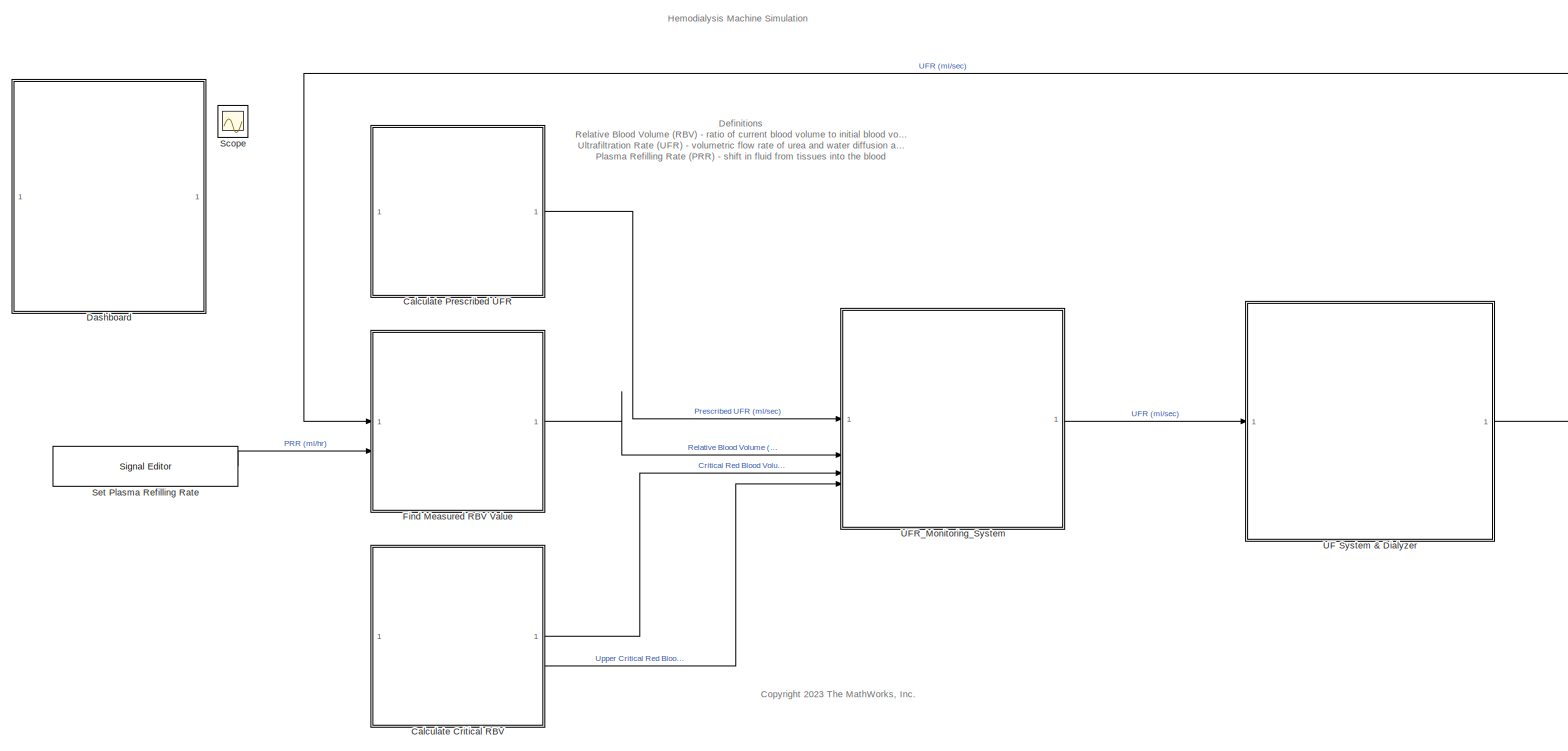
[diagram: root canvas - part 1/1, most of the canvas]
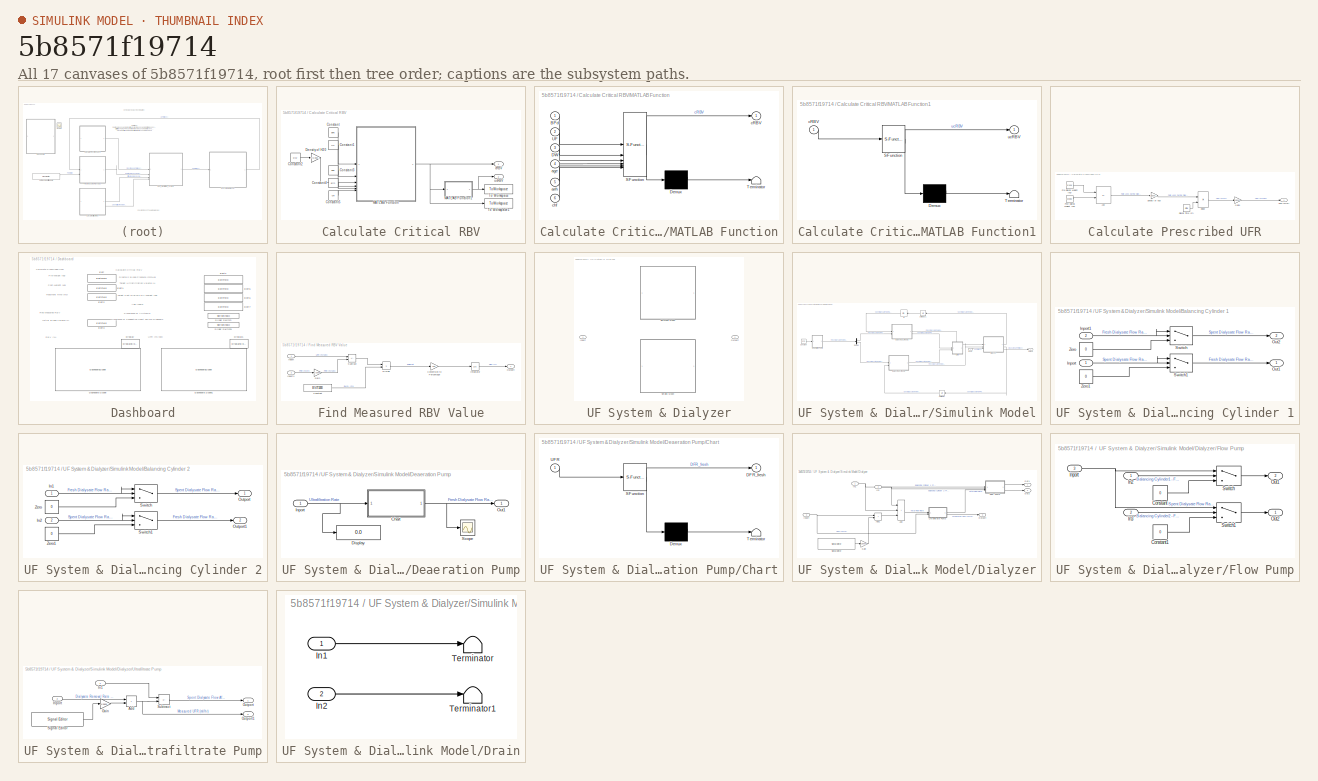
[diagram: thumbnail index - all 17 canvases of the model, root first then tree order]
MODEL slx_5b8571f19714
KIND model
CONFIG AbsTol = auto
CONFIG EnableMultiTasking = off
CONFIG FixedStep = auto
CONFIG MaxStep = auto
CONFIG MinStep = auto
CONFIG RelTol = 1e-3
CONFIG SampleTimeConstraint = Unconstrained
CONFIG SolverName = VariableStepAuto
CONFIG StartTime = 0.0
CONFIG StopTime = 3600*4
BLOCK [SubSystem] Calculate Critical RBV
BLOCK [Constant] Calculate Critical RBV/Constant
  Value = BPd
BLOCK [Constant] Calculate Critical RBV/Constant1
  Value = UF
BLOCK [Constant] Calculate Critical RBV/Constant2
  Value = DW
BLOCK [Constant] Calculate Critical RBV/Constant3
  Value = age
BLOCK [Constant] Calculate Critical RBV/Constant4
  Value = arrh
BLOCK [Constant] Calculate Critical RBV/Constant5
  Value = chf
BLOCK [Gain] Calculate Critical RBV/Density of H20
  Gain = 1/0.000997
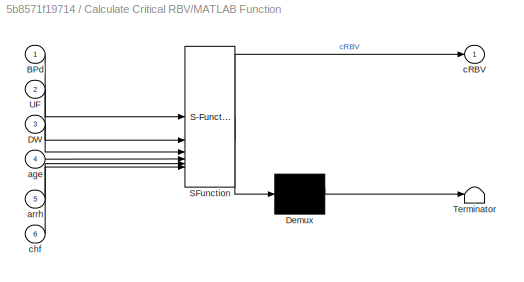
BLOCK [SubSystem] Calculate Critical RBV/MATLAB Function
  ErrorFcn = Stateflow.Translate.translate
  PermitHierarchicalResolution = ExplicitOnly
  SFBlockType = MATLAB Function
  TreatAsAtomicUnit = on
BLOCK [Demux] Calculate Critical RBV/MATLAB Function/ Demux 
  Outputs = 1
BLOCK [S-Function] Calculate Critical RBV/MATLAB Function/ SFunction 
  EnableBusSupport = on
  FunctionName = sf_sfun
  PortCounts = [6 2]
  SFcnIsStateOwnerBlock = off
  SFunctionDeploymentMode = off
  Tag = Stateflow S-Function 3
BLOCK [Terminator] Calculate Critical RBV/MATLAB Function/ Terminator 
BLOCK [Inport] Calculate Critical RBV/MATLAB Function/BPd
BLOCK [Inport] Calculate Critical RBV/MATLAB Function/DW
  Port = 3
BLOCK [Inport] Calculate Critical RBV/MATLAB Function/UF
  Port = 2
BLOCK [Inport] Calculate Critical RBV/MATLAB Function/age
  Port = 4
BLOCK [Inport] Calculate Critical RBV/MATLAB Function/arrh
  Port = 5
BLOCK [Outport] Calculate Critical RBV/MATLAB Function/cRBV
BLOCK [Inport] Calculate Critical RBV/MATLAB Function/chf
  Port = 6
BLOCK [SubSystem] Calculate Critical RBV/MATLAB Function1
  ErrorFcn = Stateflow.Translate.translate
  PermitHierarchicalResolution = ExplicitOnly
  SFBlockType = MATLAB Function
  TreatAsAtomicUnit = on
BLOCK [Demux] Calculate Critical RBV/MATLAB Function1/ Demux 
  Outputs = 1
BLOCK [S-Function] Calculate Critical RBV/MATLAB Function1/ SFunction 
  EnableBusSupport = on
  FunctionName = sf_sfun
  PortCounts = [1 2]
  SFcnIsStateOwnerBlock = off
  SFunctionDeploymentMode = off
  Tag = Stateflow S-Function 6
BLOCK [Terminator] Calculate Critical RBV/MATLAB Function1/ Terminator 
BLOCK [Inport] Calculate Critical RBV/MATLAB Function1/cRBV
BLOCK [Outport] Calculate Critical RBV/MATLAB Function1/ucRBV
BLOCK [ToWorkspace] Calculate Critical RBV/To Workspace
  FixptAsFi = on
  MaxDataPoints = inf
  SampleTime = -1
  VariableName = ucRBV
BLOCK [ToWorkspace] Calculate Critical RBV/To Workspace1
  FixptAsFi = on
  MaxDataPoints = inf
  SampleTime = -1
  VariableName = cRBV
BLOCK [Outport] Calculate Critical RBV/cRBV
BLOCK [Outport] Calculate Critical RBV/ucRBV
  Port = 2
BLOCK [SubSystem] Calculate Prescribed UFR
BLOCK [Sum] Calculate Prescribed UFR/Add
  IconShape = rectangular
  Inputs = +-
BLOCK [Gain] Calculate Prescribed UFR/Density of H20
  Gain = 1/0.000997
BLOCK [Constant] Calculate Prescribed UFR/Dialysis Time (hr)
  Value = dtime
BLOCK [Product] Calculate Prescribed UFR/Divide
  Inputs = */
BLOCK [Gain] Calculate Prescribed UFR/Gain1
  Gain = 1/3600
BLOCK [Constant] Calculate Prescribed UFR/Post-Dialysis Weight (kg)
  Value = postdw
BLOCK [Constant] Calculate Prescribed UFR/Pre-Dialysis Weight (kg)
  Value = predw
BLOCK [Outport] Calculate Prescribed UFR/UFR (ml//hr)
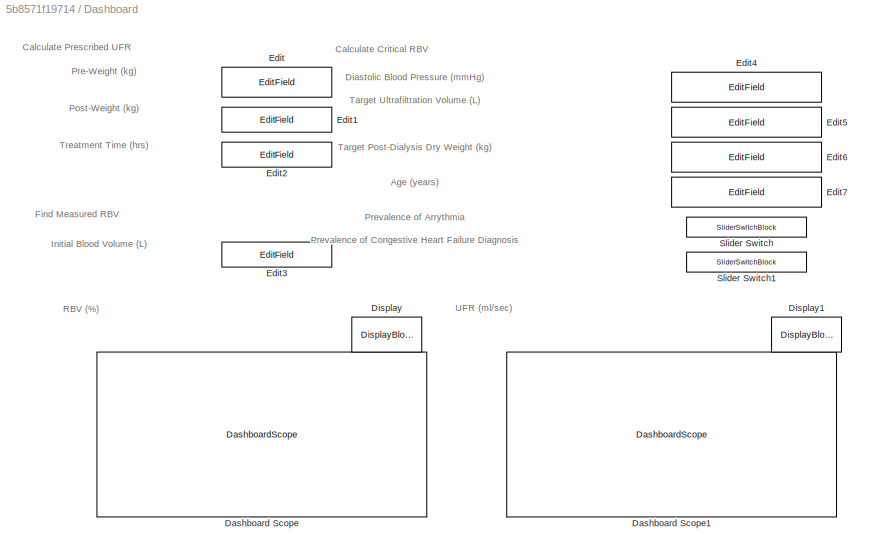
BLOCK [SubSystem] Dashboard
BLOCK [DashboardScope] Dashboard/Dashboard Scope
BLOCK [DashboardScope] Dashboard/Dashboard Scope1
BLOCK [DisplayBlock] Dashboard/Display
  Format = Custom
  FormatString = %.2f
  LabelPosition = Hide
  Layout = Fill available space
  Transparency = 1
BLOCK [DisplayBlock] Dashboard/Display1
  Format = Custom
  FormatString = %.2f
  LabelPosition = Hide
  Transparency = 1
BLOCK [EditField] Dashboard/Edit
  Alignment = Center
  LabelPosition = Hide
  ShowInitialText = on
BLOCK [EditField] Dashboard/Edit1
  Alignment = Center
  LabelPosition = Hide
  ShowInitialText = on
BLOCK [EditField] Dashboard/Edit2
  Alignment = Center
  LabelPosition = Hide
  ShowInitialText = on
BLOCK [EditField] Dashboard/Edit3
  Alignment = Center
  LabelPosition = Hide
  ShowInitialText = on
BLOCK [EditField] Dashboard/Edit4
  Alignment = Center
  LabelPosition = Hide
  ShowInitialText = on
BLOCK [EditField] Dashboard/Edit5
  Alignment = Center
  LabelPosition = Hide
  ShowInitialText = on
BLOCK [EditField] Dashboard/Edit6
  Alignment = Center
  LabelPosition = Hide
  ShowInitialText = on
BLOCK [EditField] Dashboard/Edit7
  Alignment = Center
  LabelPosition = Hide
  ShowInitialText = on
BLOCK [SliderSwitchBlock] Dashboard/Slider Switch
  LabelPosition = Hide
BLOCK [SliderSwitchBlock] Dashboard/Slider Switch1
  LabelPosition = Hide
BLOCK [SubSystem] Find Measured RBV Value
BLOCK [Constant] Find Measured RBV Value/Constant
  Value = BV0*1000
BLOCK [Gain] Find Measured RBV Value/Conversion to Percentage
  Gain = 100
BLOCK [Product] Find Measured RBV Value/Divide
  Inputs = */
BLOCK [Gain] Find Measured RBV Value/Gain
  Gain = 1/3600
BLOCK [Inport] Find Measured RBV Value/Inport
BLOCK [Inport] Find Measured RBV Value/Inport1
  Port = 2
BLOCK [Integrator] Find Measured RBV Value/Integrator
  InitialCondition = 100
BLOCK [Outport] Find Measured RBV Value/Outport
BLOCK [Sum] Find Measured RBV Value/Subtract
  IconShape = rectangular
  Inputs = -+
BLOCK [Scope] Scope
  Floating = off
  IOType = viewer
  NumInputPorts = 1
  ScopeSpecificationString = Simulink.scopes.TimeScopeBlockCfg('CurrentConfiguration', extmgr.ConfigurationSet(extmgr.Configuration('Core','General UI',true),extmgr.Configuration('Core','Source UI',true),extmgr.Configuration('Sources','WiredSimulink',true,'DataLoggingVariableName','ScopeData1'),extmgr.Configuration('Visuals','Time Domain',true,'SerializedDisplays',{struct('MinYLimReal','96.50024','MaxYLimReal','100.38886','YL...<+2099ch>
BLOCK [Reference] Set Plasma Refilling Rate   REF=SignalEditorBlockLib/Signal Editor
  SourceBlock = SignalEditorBlockLib/Signal Editor
  SourceType = SignalEditor
  UserDataPersistent = on
BLOCK [SubSystem] UF System & Dialyzer
  AttributesFormatString = %<LabelModeActiveChoice>
  LabelModeActiveChoice = Simulink
  Variant = on
  VariantControl = Choice
  VariantControlMode = label
BLOCK [Inport] UF System & Dialyzer/Inport
BLOCK [Outport] UF System & Dialyzer/Outport
BLOCK [SubSystem] UF System & Dialyzer/Simscape Model
  DFR = 30000
  ReferencedSubsystem = Simscape_UF_Model
  VariantControl = Simscape
BLOCK [SubSystem] UF System & Dialyzer/Simulink Model
  VariantControl = Simulink
BLOCK [SubSystem] UF System & Dialyzer/Simulink Model/Balancing Cylinder 1
BLOCK [Inport] UF System & Dialyzer/Simulink Model/Balancing Cylinder 1/Inport
BLOCK [Inport] UF System & Dialyzer/Simulink Model/Balancing Cylinder 1/Inport1
  Port = 2
BLOCK [Outport] UF System & Dialyzer/Simulink Model/Balancing Cylinder 1/Out1
BLOCK [Outport] UF System & Dialyzer/Simulink Model/Balancing Cylinder 1/Out2
  Port = 2
BLOCK [Switch] UF System & Dialyzer/Simulink Model/Balancing Cylinder 1/Switch
  Criteria = u2 > Threshold
  InputSameDT = off
  SaturateOnIntegerOverflow = off
BLOCK [Switch] UF System & Dialyzer/Simulink Model/Balancing Cylinder 1/Switch1
  Criteria = u2 > Threshold
  InputSameDT = off
  SaturateOnIntegerOverflow = off
BLOCK [Constant] UF System & Dialyzer/Simulink Model/Balancing Cylinder 1/Zero
  OutDataTypeStr = Inherit: Inherit via back propagation
  Value = 0
BLOCK [Constant] UF System & Dialyzer/Simulink Model/Balancing Cylinder 1/Zero1
  OutDataTypeStr = Inherit: Inherit via back propagation
  Value = 0
BLOCK [SubSystem] UF System & Dialyzer/Simulink Model/Balancing Cylinder 2
BLOCK [Inport] UF System & Dialyzer/Simulink Model/Balancing Cylinder 2/In1
BLOCK [Inport] UF System & Dialyzer/Simulink Model/Balancing Cylinder 2/In2
  Port = 2
BLOCK [Outport] UF System & Dialyzer/Simulink Model/Balancing Cylinder 2/Outport
BLOCK [Outport] UF System & Dialyzer/Simulink Model/Balancing Cylinder 2/Outport1
  Port = 2
BLOCK [Switch] UF System & Dialyzer/Simulink Model/Balancing Cylinder 2/Switch
  Criteria = u2 > Threshold
  InputSameDT = off
  SaturateOnIntegerOverflow = off
BLOCK [Switch] UF System & Dialyzer/Simulink Model/Balancing Cylinder 2/Switch1
  Criteria = u2 > Threshold
  InputSameDT = off
  SaturateOnIntegerOverflow = off
BLOCK [Constant] UF System & Dialyzer/Simulink Model/Balancing Cylinder 2/Zero
  OutDataTypeStr = Inherit: Inherit via back propagation
  Value = 0
BLOCK [Constant] UF System & Dialyzer/Simulink Model/Balancing Cylinder 2/Zero1
  OutDataTypeStr = Inherit: Inherit via back propagation
  Value = 0
BLOCK [Constant] UF System & Dialyzer/Simulink Model/Constant
  Value = DFR
BLOCK [SubSystem] UF System & Dialyzer/Simulink Model/Deaeration Pump
BLOCK [SubSystem] UF System & Dialyzer/Simulink Model/Deaeration Pump/Chart
  ErrorFcn = Stateflow.Translate.translate
  PermitHierarchicalResolution = ExplicitOnly
  SFBlockType = Chart
  TreatAsAtomicUnit = on
BLOCK [Demux] UF System & Dialyzer/Simulink Model/Deaeration Pump/Chart/ Demux 
  Outputs = 1
BLOCK [S-Function] UF System & Dialyzer/Simulink Model/Deaeration Pump/Chart/ SFunction 
  EnableBusSupport = on
  FunctionName = sf_sfun
  PortCounts = [1 2]
  SFcnIsStateOwnerBlock = off
  SFunctionDeploymentMode = off
  Tag = Stateflow S-Function 5
BLOCK [Terminator] UF System & Dialyzer/Simulink Model/Deaeration Pump/Chart/ Terminator 
BLOCK [Outport] UF System & Dialyzer/Simulink Model/Deaeration Pump/Chart/DFR_fresh
BLOCK [Inport] UF System & Dialyzer/Simulink Model/Deaeration Pump/Chart/UFR
BLOCK [Display] UF System & Dialyzer/Simulink Model/Deaeration Pump/Display
  Decimation = 1
BLOCK [Inport] UF System & Dialyzer/Simulink Model/Deaeration Pump/Inport
BLOCK [Outport] UF System & Dialyzer/Simulink Model/Deaeration Pump/Out1
BLOCK [Scope] UF System & Dialyzer/Simulink Model/Deaeration Pump/Scope
  Floating = off
  NumInputPorts = 1
  ScopeSpecificationString = Simulink.scopes.TimeScopeBlockCfg('CurrentConfiguration', extmgr.ConfigurationSet(extmgr.Configuration('Core','General UI',true),extmgr.Configuration('Core','Source UI',true),extmgr.Configuration('Sources','WiredSimulink',true),extmgr.Configuration('Visuals','Time Domain',true,'SerializedDisplays',{struct('MinYLimReal','-3750.00000','MaxYLimReal','33750.00000','YLabelReal','','MinYLimMag','  0.000...<+1462ch>
BLOCK [Demux] UF System & Dialyzer/Simulink Model/Demux
  Outputs = 2
BLOCK [SubSystem] UF System & Dialyzer/Simulink Model/Dialyzer
BLOCK [Sum] UF System & Dialyzer/Simulink Model/Dialyzer/Add
  IconShape = rectangular
  Inputs = +++
BLOCK [Sum] UF System & Dialyzer/Simulink Model/Dialyzer/Add1
  IconShape = rectangular
BLOCK [SubSystem] UF System & Dialyzer/Simulink Model/Dialyzer/Flow Pump
BLOCK [Constant] UF System & Dialyzer/Simulink Model/Dialyzer/Flow Pump/Constant
  SampleTime = -1
  Value = 0
BLOCK [Constant] UF System & Dialyzer/Simulink Model/Dialyzer/Flow Pump/Constant1
  SampleTime = -1
  Value = 0
BLOCK [Inport] UF System & Dialyzer/Simulink Model/Dialyzer/Flow Pump/In2
BLOCK [Inport] UF System & Dialyzer/Simulink Model/Dialyzer/Flow Pump/In3
  Port = 2
BLOCK [Inport] UF System & Dialyzer/Simulink Model/Dialyzer/Flow Pump/Inport
  Port = 3
BLOCK [Outport] UF System & Dialyzer/Simulink Model/Dialyzer/Flow Pump/Out1
  Port = 2
BLOCK [Outport] UF System & Dialyzer/Simulink Model/Dialyzer/Flow Pump/Out2
BLOCK [Switch] UF System & Dialyzer/Simulink Model/Dialyzer/Flow Pump/Switch
  Criteria = u2 > Threshold
  InputSameDT = off
  SaturateOnIntegerOverflow = off
BLOCK [Switch] UF System & Dialyzer/Simulink Model/Dialyzer/Flow Pump/Switch1
  Criteria = u2 > Threshold
  InputSameDT = off
  SaturateOnIntegerOverflow = off
BLOCK [Gain] UF System & Dialyzer/Simulink Model/Dialyzer/Gain
  Gain = 1/3600
BLOCK [Inport] UF System & Dialyzer/Simulink Model/Dialyzer/In1
BLOCK [Inport] UF System & Dialyzer/Simulink Model/Dialyzer/In2
  Port = 2
BLOCK [Inport] UF System & Dialyzer/Simulink Model/Dialyzer/Inport
  Port = 3
BLOCK [Outport] UF System & Dialyzer/Simulink Model/Dialyzer/Out1
BLOCK [Outport] UF System & Dialyzer/Simulink Model/Dialyzer/Out2
  Port = 2
BLOCK [Outport] UF System & Dialyzer/Simulink Model/Dialyzer/Outport
  Port = 3
BLOCK [Reference] UF System & Dialyzer/Simulink Model/Dialyzer/Signal Editor  REF=SignalEditorBlockLib/Signal Editor
  SourceBlock = SignalEditorBlockLib/Signal Editor
  SourceType = SignalEditor
  UserDataPersistent = on
BLOCK [SubSystem] UF System & Dialyzer/Simulink Model/Dialyzer/Ultrafiltrate Pump
BLOCK [Sum] UF System & Dialyzer/Simulink Model/Dialyzer/Ultrafiltrate Pump/Add
  IconShape = rectangular
BLOCK [Gain] UF System & Dialyzer/Simulink Model/Dialyzer/Ultrafiltrate Pump/Gain
  Gain = 1/3600
BLOCK [Inport] UF System & Dialyzer/Simulink Model/Dialyzer/Ultrafiltrate Pump/In1
BLOCK [Inport] UF System & Dialyzer/Simulink Model/Dialyzer/Ultrafiltrate Pump/Inport
  Port = 2
BLOCK [Outport] UF System & Dialyzer/Simulink Model/Dialyzer/Ultrafiltrate Pump/Outport
BLOCK [Outport] UF System & Dialyzer/Simulink Model/Dialyzer/Ultrafiltrate Pump/Outport1
  Port = 2
BLOCK [Reference] UF System & Dialyzer/Simulink Model/Dialyzer/Ultrafiltrate Pump/Signal Editor  REF=SignalEditorBlockLib/Signal Editor
  SourceBlock = SignalEditorBlockLib/Signal Editor
  SourceType = SignalEditor
  UserDataPersistent = on
BLOCK [Sum] UF System & Dialyzer/Simulink Model/Dialyzer/Ultrafiltrate Pump/Subtract
  IconShape = rectangular
  Inputs = +-
BLOCK [SubSystem] UF System & Dialyzer/Simulink Model/Drain
BLOCK [Inport] UF System & Dialyzer/Simulink Model/Drain/In1
BLOCK [Inport] UF System & Dialyzer/Simulink Model/Drain/In2
  Port = 2
BLOCK [Terminator] UF System & Dialyzer/Simulink Model/Drain/Terminator
BLOCK [Terminator] UF System & Dialyzer/Simulink Model/Drain/Terminator1
BLOCK [InitialCondition] UF System & Dialyzer/Simulink Model/IC
  NameLocation = top
  Value = DFR
BLOCK [Inport] UF System & Dialyzer/Simulink Model/Inport
BLOCK [Outport] UF System & Dialyzer/Simulink Model/Outport
BLOCK [UnitDelay] UF System & Dialyzer/Simulink Model/Unit Delay
  HasFrameUpgradeWarning = on
  NameLocation = top
  SampleTime = -1
BLOCK [UnitDelay] UF System & Dialyzer/Simulink Model/Unit Delay1
  HasFrameUpgradeWarning = on
  NameLocation = top
  SampleTime = -1
BLOCK [ModelReference] UFR_Monitoring_System
  ModelNameDialog = UFR_Monitoring_System
  ModelReferenceVersion = 3.74
ANNOTATION (root): Hemodialysis Machine Simulation
ANNOTATION (root): <copyright redacted>
ANNOTATION (root): Definitions Relative Blood Volume (RBV) - ratio of current blood volume to initial blood volume at start of dialysis Ultrafiltration Rate (UFR) - volumetric flow rate of urea and water diffusion across dialyzer Plasma Refilling Rate (PRR) - shift in fluid from tissues into the blood
ANNOTATION Dashboard: Age (years)
ANNOTATION Dashboard: Calculate Critical RBV
ANNOTATION Dashboard: Calculate Prescribed UFR
ANNOTATION Dashboard: Diastolic Blood Pressure (mmHg)
ANNOTATION Dashboard: Find Measured RBV
ANNOTATION Dashboard: Initial Blood Volume (L)
ANNOTATION Dashboard: Post-Weight (kg)
ANNOTATION Dashboard: Pre-Weight (kg)
ANNOTATION Dashboard: Prevalence of Arrythmia
ANNOTATION Dashboard: Prevalence of Congestive Heart Failure Diagnosis
ANNOTATION Dashboard: RBV (%)
ANNOTATION Dashboard: Target Post-Dialysis Dry Weight (kg)
ANNOTATION Dashboard: Target Ultrafiltration Volume (L)
ANNOTATION Dashboard: Treatment Time (hrs)
ANNOTATION Dashboard: UFR (ml/sec)
LINE Calculate Critical RBV/Constant1:1 -> Calculate Critical RBV/MATLAB Function:2
LINE Calculate Critical RBV/Constant2:1 -> Calculate Critical RBV/Density of H20:1
LINE Calculate Critical RBV/Constant3:1 -> Calculate Critical RBV/MATLAB Function:4
LINE Calculate Critical RBV/Constant4:1 -> Calculate Critical RBV/MATLAB Function:5
LINE Calculate Critical RBV/Constant5:1 -> Calculate Critical RBV/MATLAB Function:6
LINE Calculate Critical RBV/Constant:1 -> Calculate Critical RBV/MATLAB Function:1
LINE Calculate Critical RBV/Density of H20:1 -> Calculate Critical RBV/MATLAB Function:3
NET Calculate Critical RBV/MATLAB Function1:1 -> Calculate Critical RBV/To Workspace:1, Calculate Critical RBV/ucRBV:1
NET Calculate Critical RBV/MATLAB Function:1 -> Calculate Critical RBV/MATLAB Function1:1, Calculate Critical RBV/To Workspace1:1, Calculate Critical RBV/cRBV:1
LINE Calculate Critical RBV:1 -> UFR_Monitoring_System:3
LINE Calculate Critical RBV:2 -> UFR_Monitoring_System:4
LINE Calculate Prescribed UFR/Add:1 -> Calculate Prescribed UFR/Density of H20:1
LINE Calculate Prescribed UFR/Density of H20:1 -> Calculate Prescribed UFR/Divide:1
LINE Calculate Prescribed UFR/Dialysis Time (hr):1 -> Calculate Prescribed UFR/Divide:2
LINE Calculate Prescribed UFR/Divide:1 -> Calculate Prescribed UFR/Gain1:1
LINE Calculate Prescribed UFR/Gain1:1 -> Calculate Prescribed UFR/UFR (ml//hr):1
LINE Calculate Prescribed UFR/Post-Dialysis Weight (kg):1 -> Calculate Prescribed UFR/Add:2
LINE Calculate Prescribed UFR/Pre-Dialysis Weight (kg):1 -> Calculate Prescribed UFR/Add:1
LINE Calculate Prescribed UFR:1 -> UFR_Monitoring_System:1
LINE Find Measured RBV Value/Constant:1 -> Find Measured RBV Value/Divide:2
LINE Find Measured RBV Value/Conversion to Percentage:1 -> Find Measured RBV Value/Integrator:1
LINE Find Measured RBV Value/Divide:1 -> Find Measured RBV Value/Conversion to Percentage:1
LINE Find Measured RBV Value/Gain:1 -> Find Measured RBV Value/Subtract:2
LINE Find Measured RBV Value/Inport1:1 -> Find Measured RBV Value/Gain:1
LINE Find Measured RBV Value/Inport:1 -> Find Measured RBV Value/Subtract:1
LINE Find Measured RBV Value/Integrator:1 -> Find Measured RBV Value/Outport:1
LINE Find Measured RBV Value/Subtract:1 -> Find Measured RBV Value/Divide:1
LINE Find Measured RBV Value:1 -> UFR_Monitoring_System:2
LINE Set Plasma Refilling Rate :1 -> Find Measured RBV Value:2
NET UF System & Dialyzer/Simulink Model/Balancing Cylinder 1/Inport1:1 -> UF System & Dialyzer/Simulink Model/Balancing Cylinder 1/Switch:1, UF System & Dialyzer/Simulink Model/Balancing Cylinder 1/Switch:2
NET UF System & Dialyzer/Simulink Model/Balancing Cylinder 1/Inport:1 -> UF System & Dialyzer/Simulink Model/Balancing Cylinder 1/Switch1:1, UF System & Dialyzer/Simulink Model/Balancing Cylinder 1/Switch1:2
LINE UF System & Dialyzer/Simulink Model/Balancing Cylinder 1/Switch1:1 -> UF System & Dialyzer/Simulink Model/Balancing Cylinder 1/Out1:1
LINE UF System & Dialyzer/Simulink Model/Balancing Cylinder 1/Switch:1 -> UF System & Dialyzer/Simulink Model/Balancing Cylinder 1/Out2:1
LINE UF System & Dialyzer/Simulink Model/Balancing Cylinder 1/Zero1:1 -> UF System & Dialyzer/Simulink Model/Balancing Cylinder 1/Switch1:3
LINE UF System & Dialyzer/Simulink Model/Balancing Cylinder 1/Zero:1 -> UF System & Dialyzer/Simulink Model/Balancing Cylinder 1/Switch:3
LINE UF System & Dialyzer/Simulink Model/Balancing Cylinder 1:1 -> UF System & Dialyzer/Simulink Model/Dialyzer:1
LINE UF System & Dialyzer/Simulink Model/Balancing Cylinder 1:2 -> UF System & Dialyzer/Simulink Model/Drain:1
NET UF System & Dialyzer/Simulink Model/Balancing Cylinder 2/In1:1 -> UF System & Dialyzer/Simulink Model/Balancing Cylinder 2/Switch:1, UF System & Dialyzer/Simulink Model/Balancing Cylinder 2/Switch:2
NET UF System & Dialyzer/Simulink Model/Balancing Cylinder 2/In2:1 -> UF System & Dialyzer/Simulink Model/Balancing Cylinder 2/Switch1:1, UF System & Dialyzer/Simulink Model/Balancing Cylinder 2/Switch1:2
LINE UF System & Dialyzer/Simulink Model/Balancing Cylinder 2/Switch1:1 -> UF System & Dialyzer/Simulink Model/Balancing Cylinder 2/Outport1:1
LINE UF System & Dialyzer/Simulink Model/Balancing Cylinder 2/Switch:1 -> UF System & Dialyzer/Simulink Model/Balancing Cylinder 2/Outport:1
LINE UF System & Dialyzer/Simulink Model/Balancing Cylinder 2/Zero1:1 -> UF System & Dialyzer/Simulink Model/Balancing Cylinder 2/Switch1:3
LINE UF System & Dialyzer/Simulink Model/Balancing Cylinder 2/Zero:1 -> UF System & Dialyzer/Simulink Model/Balancing Cylinder 2/Switch:3
LINE UF System & Dialyzer/Simulink Model/Balancing Cylinder 2:1 -> UF System & Dialyzer/Simulink Model/Drain:2
LINE UF System & Dialyzer/Simulink Model/Balancing Cylinder 2:2 -> UF System & Dialyzer/Simulink Model/Dialyzer:2
LINE UF System & Dialyzer/Simulink Model/Constant:1 -> UF System & Dialyzer/Simulink Model/Deaeration Pump:1
NET UF System & Dialyzer/Simulink Model/Deaeration Pump/Chart:1 -> UF System & Dialyzer/Simulink Model/Deaeration Pump/Out1:1, UF System & Dialyzer/Simulink Model/Deaeration Pump/Scope:1
NET UF System & Dialyzer/Simulink Model/Deaeration Pump/Inport:1 -> UF System & Dialyzer/Simulink Model/Deaeration Pump/Chart:1, UF System & Dialyzer/Simulink Model/Deaeration Pump/Display:1
LINE UF System & Dialyzer/Simulink Model/Deaeration Pump:1 -> UF System & Dialyzer/Simulink Model/Demux:1
LINE UF System & Dialyzer/Simulink Model/Demux:1 -> UF System & Dialyzer/Simulink Model/Balancing Cylinder 1:2
LINE UF System & Dialyzer/Simulink Model/Demux:2 -> UF System & Dialyzer/Simulink Model/Balancing Cylinder 2:1
LINE UF System & Dialyzer/Simulink Model/Dialyzer/Add1:1 -> UF System & Dialyzer/Simulink Model/Dialyzer/Add:3
LINE UF System & Dialyzer/Simulink Model/Dialyzer/Add:1 -> UF System & Dialyzer/Simulink Model/Dialyzer/Ultrafiltrate Pump:1
LINE UF System & Dialyzer/Simulink Model/Dialyzer/Flow Pump/Constant1:1 -> UF System & Dialyzer/Simulink Model/Dialyzer/Flow Pump/Switch1:3
LINE UF System & Dialyzer/Simulink Model/Dialyzer/Flow Pump/Constant:1 -> UF System & Dialyzer/Simulink Model/Dialyzer/Flow Pump/Switch:3
LINE UF System & Dialyzer/Simulink Model/Dialyzer/Flow Pump/In2:1 -> UF System & Dialyzer/Simulink Model/Dialyzer/Flow Pump/Switch:2
LINE UF System & Dialyzer/Simulink Model/Dialyzer/Flow Pump/In3:1 -> UF System & Dialyzer/Simulink Model/Dialyzer/Flow Pump/Switch1:2
NET UF System & Dialyzer/Simulink Model/Dialyzer/Flow Pump/Inport:1 -> UF System & Dialyzer/Simulink Model/Dialyzer/Flow Pump/Switch1:1, UF System & Dialyzer/Simulink Model/Dialyzer/Flow Pump/Switch:1
LINE UF System & Dialyzer/Simulink Model/Dialyzer/Flow Pump/Switch1:1 -> UF System & Dialyzer/Simulink Model/Dialyzer/Flow Pump/Out2:1
LINE UF System & Dialyzer/Simulink Model/Dialyzer/Flow Pump/Switch:1 -> UF System & Dialyzer/Simulink Model/Dialyzer/Flow Pump/Out1:1
LINE UF System & Dialyzer/Simulink Model/Dialyzer/Flow Pump:1 -> UF System & Dialyzer/Simulink Model/Dialyzer/Out1:1
LINE UF System & Dialyzer/Simulink Model/Dialyzer/Flow Pump:2 -> UF System & Dialyzer/Simulink Model/Dialyzer/Out2:1
LINE UF System & Dialyzer/Simulink Model/Dialyzer/Gain:1 -> UF System & Dialyzer/Simulink Model/Dialyzer/Add1:2
NET UF System & Dialyzer/Simulink Model/Dialyzer/In1:1 -> UF System & Dialyzer/Simulink Model/Dialyzer/Add:2, UF System & Dialyzer/Simulink Model/Dialyzer/Flow Pump:1
NET UF System & Dialyzer/Simulink Model/Dialyzer/In2:1 -> UF System & Dialyzer/Simulink Model/Dialyzer/Add:1, UF System & Dialyzer/Simulink Model/Dialyzer/Flow Pump:2
NET UF System & Dialyzer/Simulink Model/Dialyzer/Inport:1 -> UF System & Dialyzer/Simulink Model/Dialyzer/Add1:1, UF System & Dialyzer/Simulink Model/Dialyzer/Ultrafiltrate Pump:2
LINE UF System & Dialyzer/Simulink Model/Dialyzer/Signal Editor:1 -> UF System & Dialyzer/Simulink Model/Dialyzer/Gain:1
NET UF System & Dialyzer/Simulink Model/Dialyzer/Ultrafiltrate Pump/Add:1 -> UF System & Dialyzer/Simulink Model/Dialyzer/Ultrafiltrate Pump/Outport1:1, UF System & Dialyzer/Simulink Model/Dialyzer/Ultrafiltrate Pump/Subtract:2
LINE UF System & Dialyzer/Simulink Model/Dialyzer/Ultrafiltrate Pump/Gain:1 -> UF System & Dialyzer/Simulink Model/Dialyzer/Ultrafiltrate Pump/Add:2
LINE UF System & Dialyzer/Simulink Model/Dialyzer/Ultrafiltrate Pump/In1:1 -> UF System & Dialyzer/Simulink Model/Dialyzer/Ultrafiltrate Pump/Subtract:1
LINE UF System & Dialyzer/Simulink Model/Dialyzer/Ultrafiltrate Pump/Inport:1 -> UF System & Dialyzer/Simulink Model/Dialyzer/Ultrafiltrate Pump/Add:1
LINE UF System & Dialyzer/Simulink Model/Dialyzer/Ultrafiltrate Pump/Signal Editor:1 -> UF System & Dialyzer/Simulink Model/Dialyzer/Ultrafiltrate Pump/Gain:1
LINE UF System & Dialyzer/Simulink Model/Dialyzer/Ultrafiltrate Pump/Subtract:1 -> UF System & Dialyzer/Simulink Model/Dialyzer/Ultrafiltrate Pump/Outport:1
LINE UF System & Dialyzer/Simulink Model/Dialyzer/Ultrafiltrate Pump:1 -> UF System & Dialyzer/Simulink Model/Dialyzer/Flow Pump:3
LINE UF System & Dialyzer/Simulink Model/Dialyzer/Ultrafiltrate Pump:2 -> UF System & Dialyzer/Simulink Model/Dialyzer/Outport:1
LINE UF System & Dialyzer/Simulink Model/Dialyzer:1 -> UF System & Dialyzer/Simulink Model/Unit Delay1:1
LINE UF System & Dialyzer/Simulink Model/Dialyzer:2 -> UF System & Dialyzer/Simulink Model/Unit Delay:1
LINE UF System & Dialyzer/Simulink Model/Dialyzer:3 -> UF System & Dialyzer/Simulink Model/Outport:1
LINE UF System & Dialyzer/Simulink Model/Drain/In1:1 -> UF System & Dialyzer/Simulink Model/Drain/Terminator:1
LINE UF System & Dialyzer/Simulink Model/Drain/In2:1 -> UF System & Dialyzer/Simulink Model/Drain/Terminator1:1
LINE UF System & Dialyzer/Simulink Model/IC:1 -> UF System & Dialyzer/Simulink Model/Balancing Cylinder 1:1
LINE UF System & Dialyzer/Simulink Model/Inport:1 -> UF System & Dialyzer/Simulink Model/Dialyzer:3
LINE UF System & Dialyzer/Simulink Model/Unit Delay1:1 -> UF System & Dialyzer/Simulink Model/IC:1
LINE UF System & Dialyzer/Simulink Model/Unit Delay:1 -> UF System & Dialyzer/Simulink Model/Balancing Cylinder 2:2
LINE UF System & Dialyzer:1 -> Find Measured RBV Value:1
LINE UFR_Monitoring_System:1 -> UF System & Dialyzer:1
note: NET lines group one-source signal fan-out (src -> all destinations, sorted); 1:1 wires keep LINE
CHART Calculate Critical RBV/MATLAB Function states=1 transitions=1
  STATE_LABEL 'eML_blk_kernel()'
  STATE_LABEL 'SCRIPT:\nfunction cRBV = calculate_cRBV(BPd, UF, DW, age, arrh, chf)\n% BPd - diastolic blood pressure at t=0 (mmHg)\n% UF -  (l)\n% DW - target dry weight post-dialysis (l)\n% age - age in years (yrs)\n% arrh - prevalence of arrythmia (0=absent; 1=existent)\n% chf - prevalence of congestive heart failure diagnosis (0=absent; 1=existent)\n\ncRBV = 97.8 - 0.08*BPd - (UF/DW) + 0.05*age + 1.5*arrh + 0.2*chf;\n'
CHART UF System & Dialyzer/Simulink Model/Deaeration Pump/Chart states=2 transitions=3
  STATE_LABEL 'FillCylinder2\nentry: DFR_fresh = [UFR, 0];\nduring: DFR_fresh = [UFR, 0];'
  STATE_LABEL 'FillCylinder1\nentry: DFR_fresh = [0, UFR];\nduring: DFR_fresh = [0, UFR];\n'
CHART Calculate Critical RBV/MATLAB Function1 states=1 transitions=1
  STATE_LABEL 'eML_blk_kernel()'
  STATE_LABEL 'SCRIPT:\nfunction ucRBV = fcn(cRBV)\n% Calculate the upper threshold for cRBV where UFR begins to decrease\nucRBV = (100 - cRBV) / 2 + cRBV;'
CHART  states=0 transitions=0
CHART  states=0 transitions=0
CHART  states=0 transitions=0
